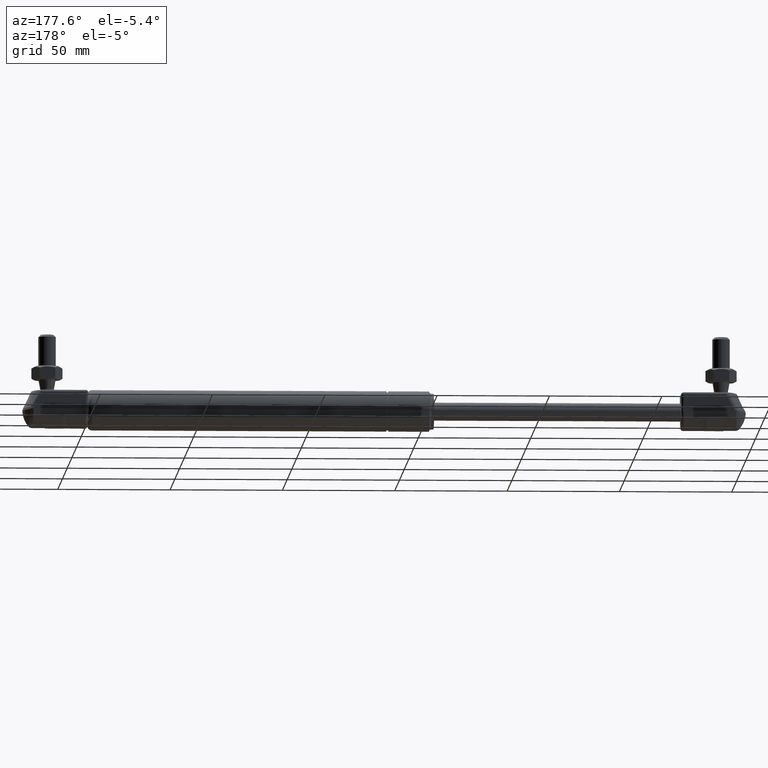
[diagram: clean part render]
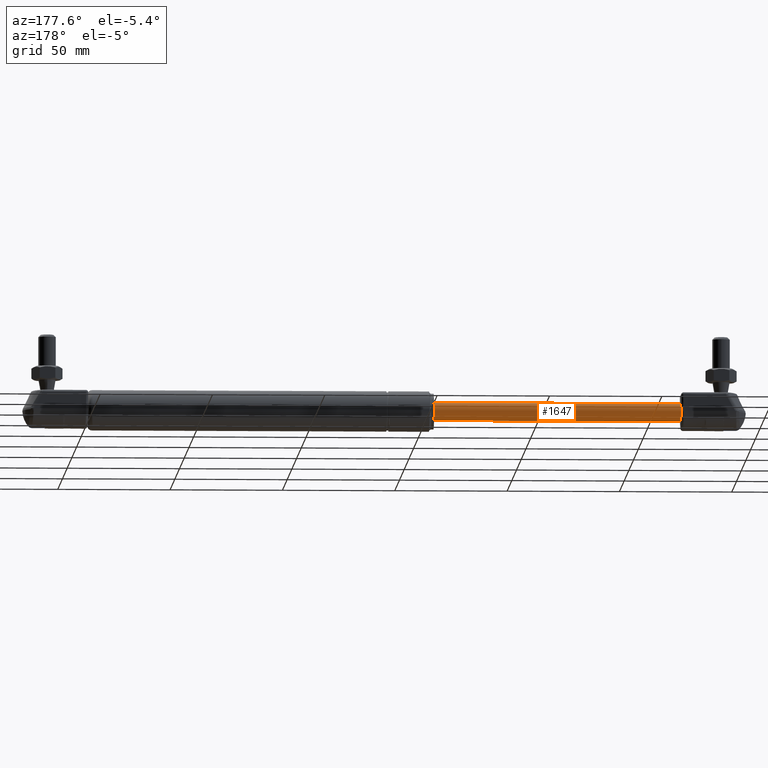
[diagram: same view with one face highlighted and labeled with its STEP entity id]
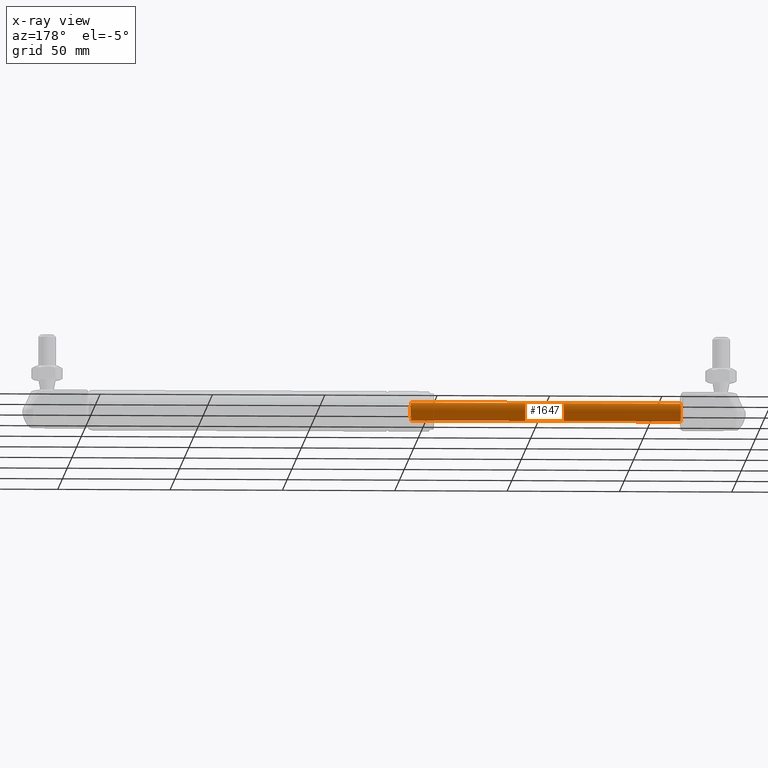
[diagram: x-ray of the same camera — body ghosted, the highlighted face saturated]
A machine part, auxiliary view. The second image highlights one B-rep face of the part: STEP entity #1647.
The next image is the same camera in x-ray: the body ghosted, the highlighted face saturated — about 0% of this face is hidden behind the body in this view.
In plain terms, the highlighted cylindrical surface (bore or boss wall) has radius 4 mm, axis along (-1, 0, -0).
Its self-contained STEP definition (entity closure, byte-faithful):
#303=CYLINDRICAL_SURFACE('',#1796,4.00000000000001);
#345=FACE_BOUND('',#531,.T.);
#392=FACE_OUTER_BOUND('',#530,.T.);
#530=EDGE_LOOP('',(#1148));
#531=EDGE_LOOP('',(#1149));
#658=CIRCLE('',#1789,4.00000000000001);
#660=CIRCLE('',#1792,4.);
#738=VERTEX_POINT('',#2416);
#740=VERTEX_POINT('',#2421);
#896=EDGE_CURVE('',#738,#738,#658,.T.);
#898=EDGE_CURVE('',#740,#740,#660,.T.);
#1148=ORIENTED_EDGE('',*,*,#896,.T.);
#1149=ORIENTED_EDGE('',*,*,#898,.T.);
#1647=ADVANCED_FACE('',(#392,#345),#303,.T.);
#1789=AXIS2_PLACEMENT_3D('',#2417,#2023,#2024);
#1792=AXIS2_PLACEMENT_3D('',#2422,#2029,#2030);
#1796=AXIS2_PLACEMENT_3D('',#2427,#2037,#2038);
#2023=DIRECTION('center_axis',(1.,0.,0.));
#2024=DIRECTION('ref_axis',(0.,0.,1.));
#2029=DIRECTION('center_axis',(-1.,0.,0.));
#2030=DIRECTION('ref_axis',(0.,0.,1.));
#2037=DIRECTION('center_axis',(-1.,0.,0.));
#2038=DIRECTION('ref_axis',(0.,0.,1.));
#2416=CARTESIAN_POINT('',(0.,4.89858719658942E-16,4.00000000000001));
#2417=CARTESIAN_POINT('Origin',(0.,0.,0.));
#2421=CARTESIAN_POINT('',(120.,0.,4.));
#2422=CARTESIAN_POINT('Origin',(120.,0.,0.));
#2427=CARTESIAN_POINT('Origin',(60.,0.,0.));